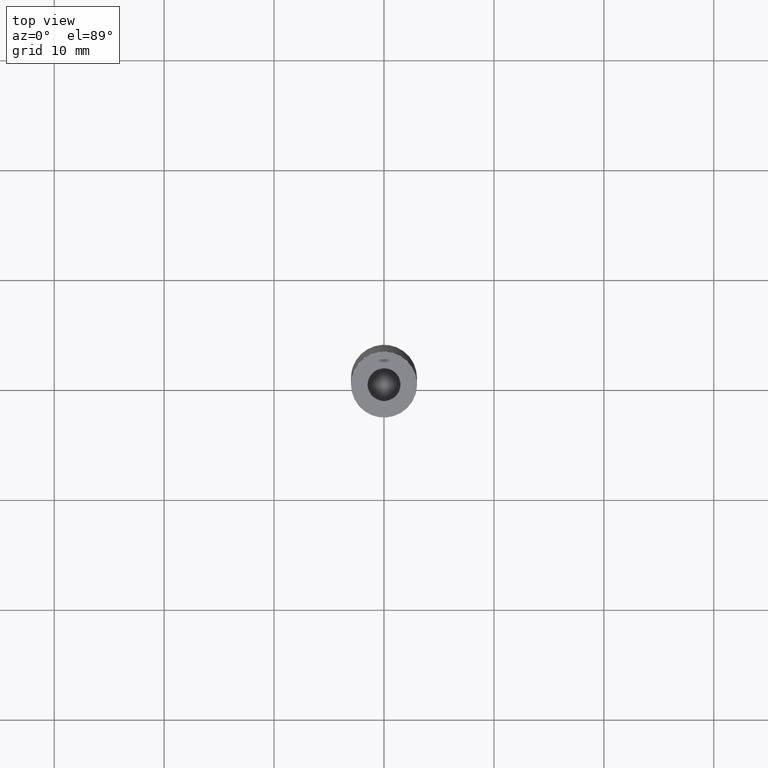
[diagram: clean part render]
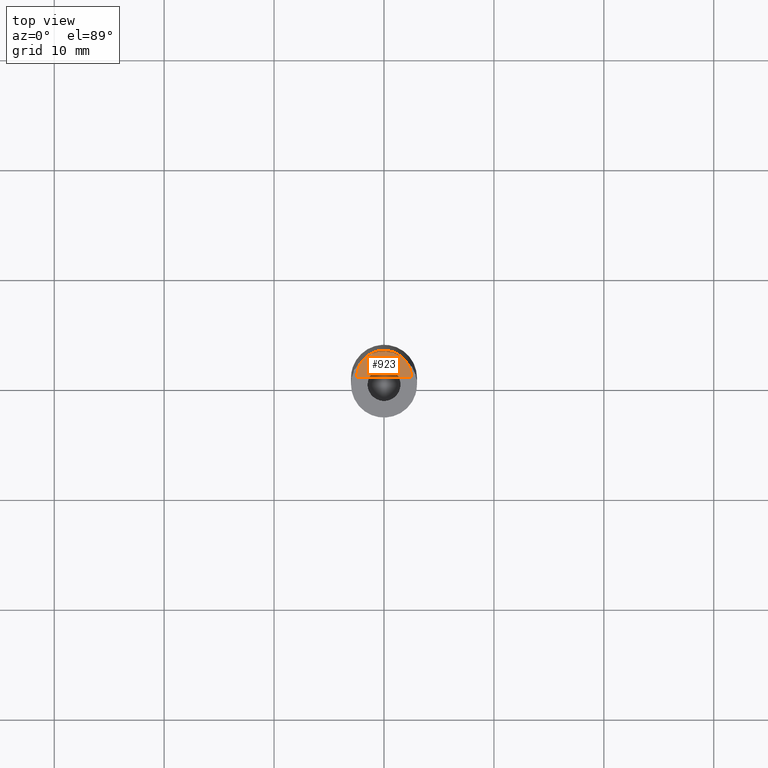
[diagram: same view with one face highlighted and labeled with its STEP entity id]
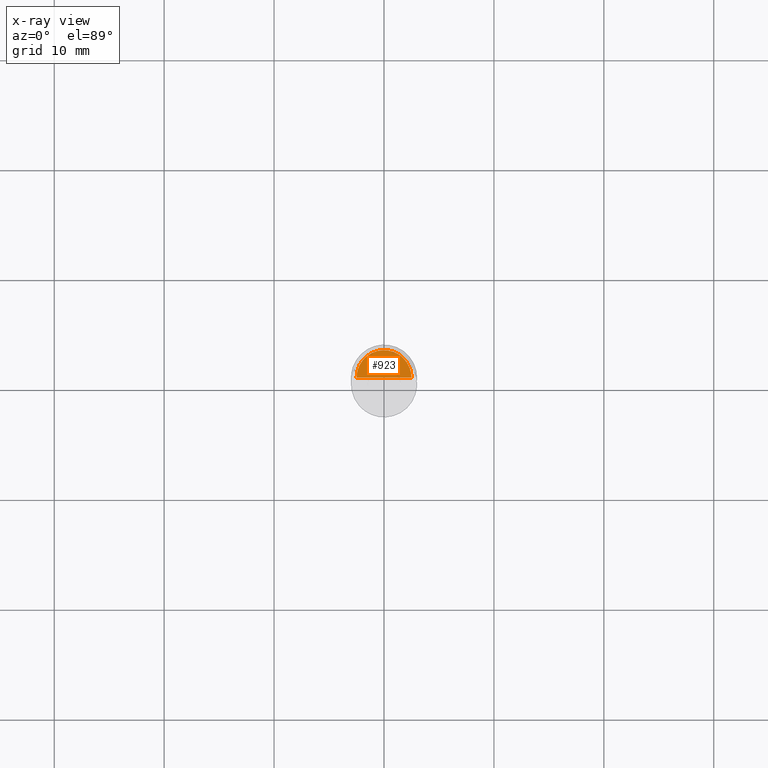
[diagram: x-ray of the same camera — body ghosted, the highlighted face saturated]
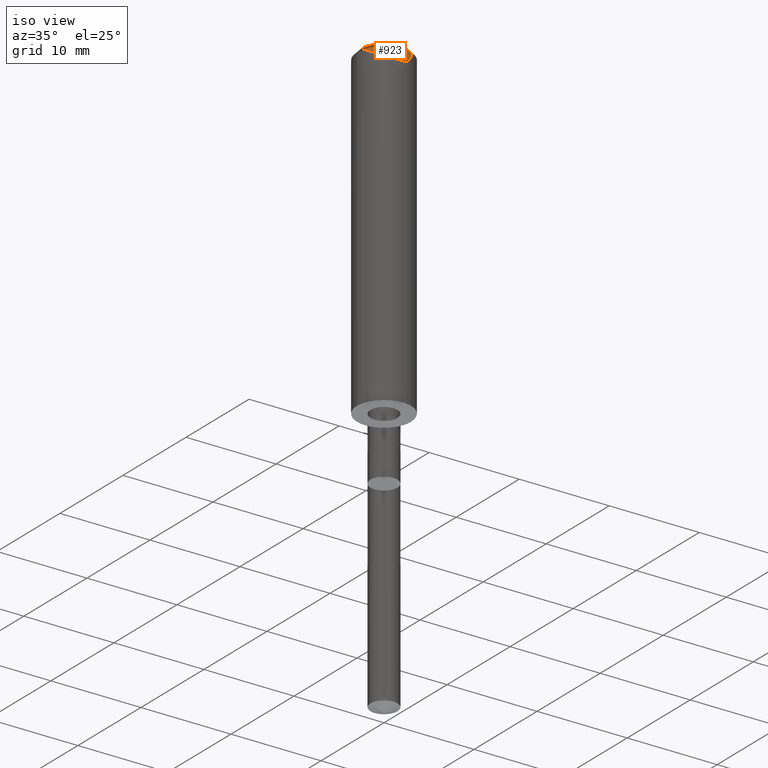
[diagram: same view with one face highlighted and labeled with its STEP entity id]
A machine part, top view. The second image highlights one B-rep face of the part: STEP entity #923.
The next image is the same camera in x-ray: the body ghosted, the highlighted face saturated — about 0% of this face is hidden behind the body in this view.
A second angle (iso view) of the same face is appended — the face is thin or edge-on in the first view.
In plain terms, the highlighted face is a freeform B-spline surface patch.
Its self-contained STEP definition (entity closure, byte-faithful):
#658=CARTESIAN_POINT('',(2.5,0.0,36.0));
#659=CARTESIAN_POINT('',(2.5,2.5,36.0));
#660=CARTESIAN_POINT('',(0.0,2.5,36.0));
#661=CARTESIAN_POINT('',(-2.5,2.5,36.0));
#662=CARTESIAN_POINT('',(-2.5,0.0,36.0));
#663=CARTESIAN_POINT('',(0.0,0.0,36.0));
#908=(
BOUNDED_SURFACE()
B_SPLINE_SURFACE(1,2,(
(#658,#659,#660,#661,#662),
(#663,#663,#663,#663,#663)
), .UNSPECIFIED.,.F.,.F.,.F.)
B_SPLINE_SURFACE_WITH_KNOTS((2,2),(3,2,3),(
0.0,1.0),(
0.0,0.5,1.0), .UNSPECIFIED.)
GEOMETRIC_REPRESENTATION_ITEM()
RATIONAL_B_SPLINE_SURFACE(((1.0,0.707106781187,1.0,0.707106781187,1.0),
(1.0,0.707106781187,1.0,0.707106781187,1.0)
))
REPRESENTATION_ITEM('')
SURFACE()
);
#909=(
BOUNDED_CURVE()
B_SPLINE_CURVE(2,(#662,#661,#660,#659,#658),.UNSPECIFIED.,.F.,.F.)
B_SPLINE_CURVE_WITH_KNOTS((3,2,3),
(0.0,0.5,1.0),.UNSPECIFIED.)
CURVE()
GEOMETRIC_REPRESENTATION_ITEM()
RATIONAL_B_SPLINE_CURVE((1.0,0.707106781187,1.0,0.707106781187,1.0))
REPRESENTATION_ITEM('')
);
#910=(
BOUNDED_CURVE()
B_SPLINE_CURVE(1,(#658,#663),.UNSPECIFIED.,.F.,.F.)
B_SPLINE_CURVE_WITH_KNOTS((2,2),
(0.0,1.0),.UNSPECIFIED.)
CURVE()
GEOMETRIC_REPRESENTATION_ITEM()
RATIONAL_B_SPLINE_CURVE((1.0,1.0))
REPRESENTATION_ITEM('')
);
#911=(
BOUNDED_CURVE()
B_SPLINE_CURVE(1,(#663,#662),.UNSPECIFIED.,.F.,.F.)
B_SPLINE_CURVE_WITH_KNOTS((2,2),
(0.0,1.0),.UNSPECIFIED.)
CURVE()
GEOMETRIC_REPRESENTATION_ITEM()
RATIONAL_B_SPLINE_CURVE((1.0,1.0))
REPRESENTATION_ITEM('')
);
#912=VERTEX_POINT('',#658);
#913=VERTEX_POINT('',#662);
#914=VERTEX_POINT('',#663);
#915=EDGE_CURVE('',#913,#912,#909,.T.);
#916=EDGE_CURVE('',#912,#914,#910,.T.);
#917=EDGE_CURVE('',#914,#913,#911,.T.);
#918=ORIENTED_EDGE('',*,*,#915,.T.);
#919=ORIENTED_EDGE('',*,*,#916,.T.);
#920=ORIENTED_EDGE('',*,*,#917,.T.);
#921=EDGE_LOOP('',(#918,#919,#920));
#922=FACE_OUTER_BOUND('',#921,.T.);
#923=ADVANCED_FACE('',(#922),#908,.T.);